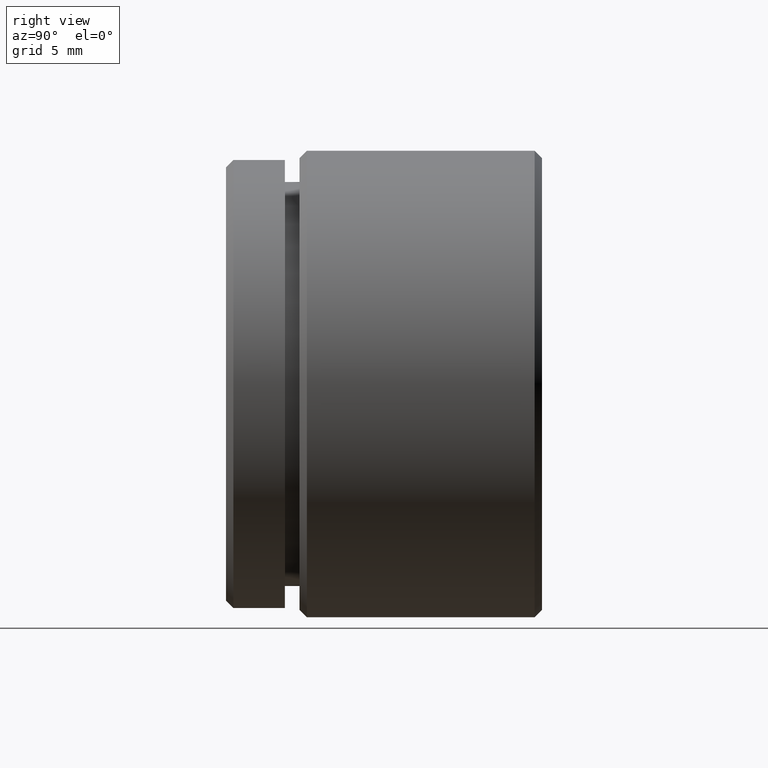
[diagram: clean part render]
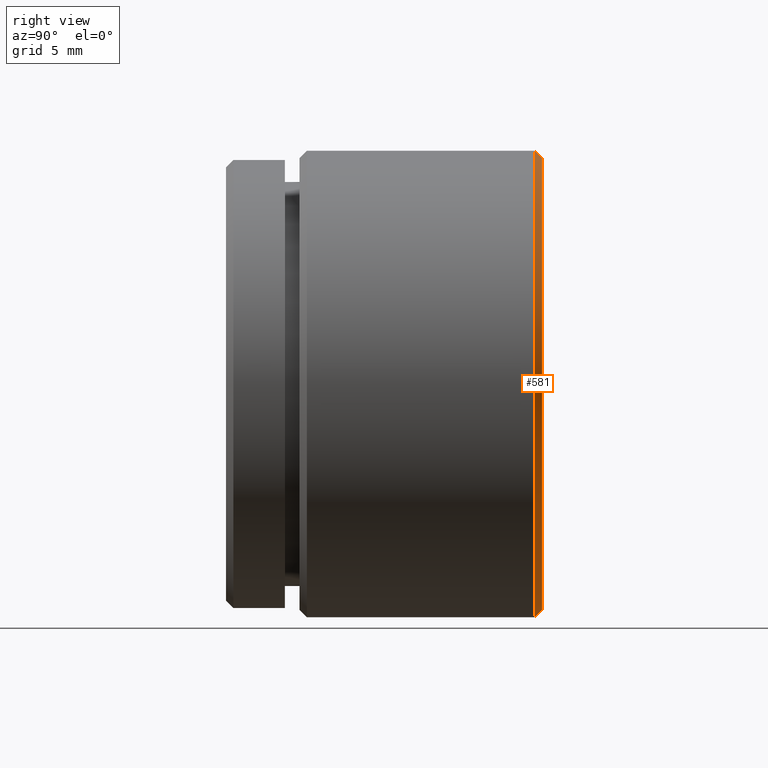
[diagram: same view with one face highlighted and labeled with its STEP entity id]
A machine part, right view. The second image highlights one B-rep face of the part: STEP entity #581.
In plain terms, the highlighted conical surface has half-angle 45 deg.
Its self-contained STEP definition (entity closure, byte-faithful):
#8 = DIRECTION ( 'NONE',  ( 0.0000000000000000000, 1.000000000000000000, 0.0000000000000000000 ) ) ;
#32 = CARTESIAN_POINT ( 'NONE',  ( 0.0000000000000000000, 21.00000000000000000, 0.0000000000000000000 ) ) ;
#51 = EDGE_CURVE ( 'NONE', #528, #356, #273, .T. ) ;
#70 = ORIENTED_EDGE ( 'NONE', *, *, #51, .F. ) ;
#89 = CARTESIAN_POINT ( 'NONE',  ( 0.0000000000000000000, 21.00000000000000000, -15.87500000000000000 ) ) ;
#106 = CARTESIAN_POINT ( 'NONE',  ( 1.913510623667739100E-015, 21.50000000000000000, 15.37499999999999600 ) ) ;
#197 = LINE ( 'NONE', #403, #688 ) ;
#217 = EDGE_LOOP ( 'NONE', ( #762, #412, #542, #70 ) ) ;
#225 = CARTESIAN_POINT ( 'NONE',  ( 0.0000000000000000000, 21.00000000000000000, -15.87500000000000000 ) ) ;
#229 = AXIS2_PLACEMENT_3D ( 'NONE', #283, #286, #410 ) ;
#243 = VERTEX_POINT ( 'NONE', #804 ) ;
#256 = DIRECTION ( 'NONE',  ( 0.0000000000000000000, 0.0000000000000000000, 1.000000000000000000 ) ) ;
#259 = DIRECTION ( 'NONE',  ( -0.0000000000000000000, -1.000000000000000000, -0.0000000000000000000 ) ) ;
#273 = LINE ( 'NONE', #89, #456 ) ;
#282 = AXIS2_PLACEMENT_3D ( 'NONE', #32, #259, #256 ) ;
#283 = CARTESIAN_POINT ( 'NONE',  ( 0.0000000000000000000, 21.00000000000000000, 0.0000000000000000000 ) ) ;
#286 = DIRECTION ( 'NONE',  ( -0.0000000000000000000, -1.000000000000000000, -0.0000000000000000000 ) ) ;
#290 = DIRECTION ( 'NONE',  ( 0.0000000000000000000, 0.0000000000000000000, 1.000000000000000000 ) ) ;
#356 = VERTEX_POINT ( 'NONE', #225 ) ;
#403 = CARTESIAN_POINT ( 'NONE',  ( 1.944126793646423200E-015, 21.00000000000000000, 15.87500000000000000 ) ) ;
#410 = DIRECTION ( 'NONE',  ( 0.0000000000000000000, 0.0000000000000000000, -1.000000000000000000 ) ) ;
#412 = ORIENTED_EDGE ( 'NONE', *, *, #422, .T. ) ;
#422 = EDGE_CURVE ( 'NONE', #481, #243, #197, .T. ) ;
#454 = CIRCLE ( 'NONE', #484, 15.37499999999999600 ) ;
#456 = VECTOR ( 'NONE', #845, 999.9999999999998900 ) ;
#481 = VERTEX_POINT ( 'NONE', #106 ) ;
#484 = AXIS2_PLACEMENT_3D ( 'NONE', #540, #8, #290 ) ;
#498 = EDGE_CURVE ( 'NONE', #481, #528, #454, .T. ) ;
#505 = FACE_OUTER_BOUND ( 'NONE', #217, .T. ) ;
#525 = CIRCLE ( 'NONE', #282, 15.87500000000000000 ) ;
#528 = VERTEX_POINT ( 'NONE', #640 ) ;
#540 = CARTESIAN_POINT ( 'NONE',  ( 0.0000000000000000000, 21.50000000000000000, 0.0000000000000000000 ) ) ;
#542 = ORIENTED_EDGE ( 'NONE', *, *, #562, .F. ) ;
#562 = EDGE_CURVE ( 'NONE', #356, #243, #525, .T. ) ;
#581 = ADVANCED_FACE ( 'NONE', ( #505 ), #646, .T. ) ;
#640 = CARTESIAN_POINT ( 'NONE',  ( 0.0000000000000000000, 21.50000000000000000, -15.37499999999999600 ) ) ;
#646 = CONICAL_SURFACE ( 'NONE', #229, 15.87500000000000000, 0.7853981633974552700 ) ;
#688 = VECTOR ( 'NONE', #696, 999.9999999999998900 ) ;
#696 = DIRECTION ( 'NONE',  ( 8.659560562354994500E-017, -0.7071067811865425800, 0.7071067811865525700 ) ) ;
#762 = ORIENTED_EDGE ( 'NONE', *, *, #498, .F. ) ;
#804 = CARTESIAN_POINT ( 'NONE',  ( 1.944126793646423200E-015, 21.00000000000000000, 15.87500000000000000 ) ) ;
#845 = DIRECTION ( 'NONE',  ( 0.0000000000000000000, -0.7071067811865425800, -0.7071067811865525700 ) ) ;